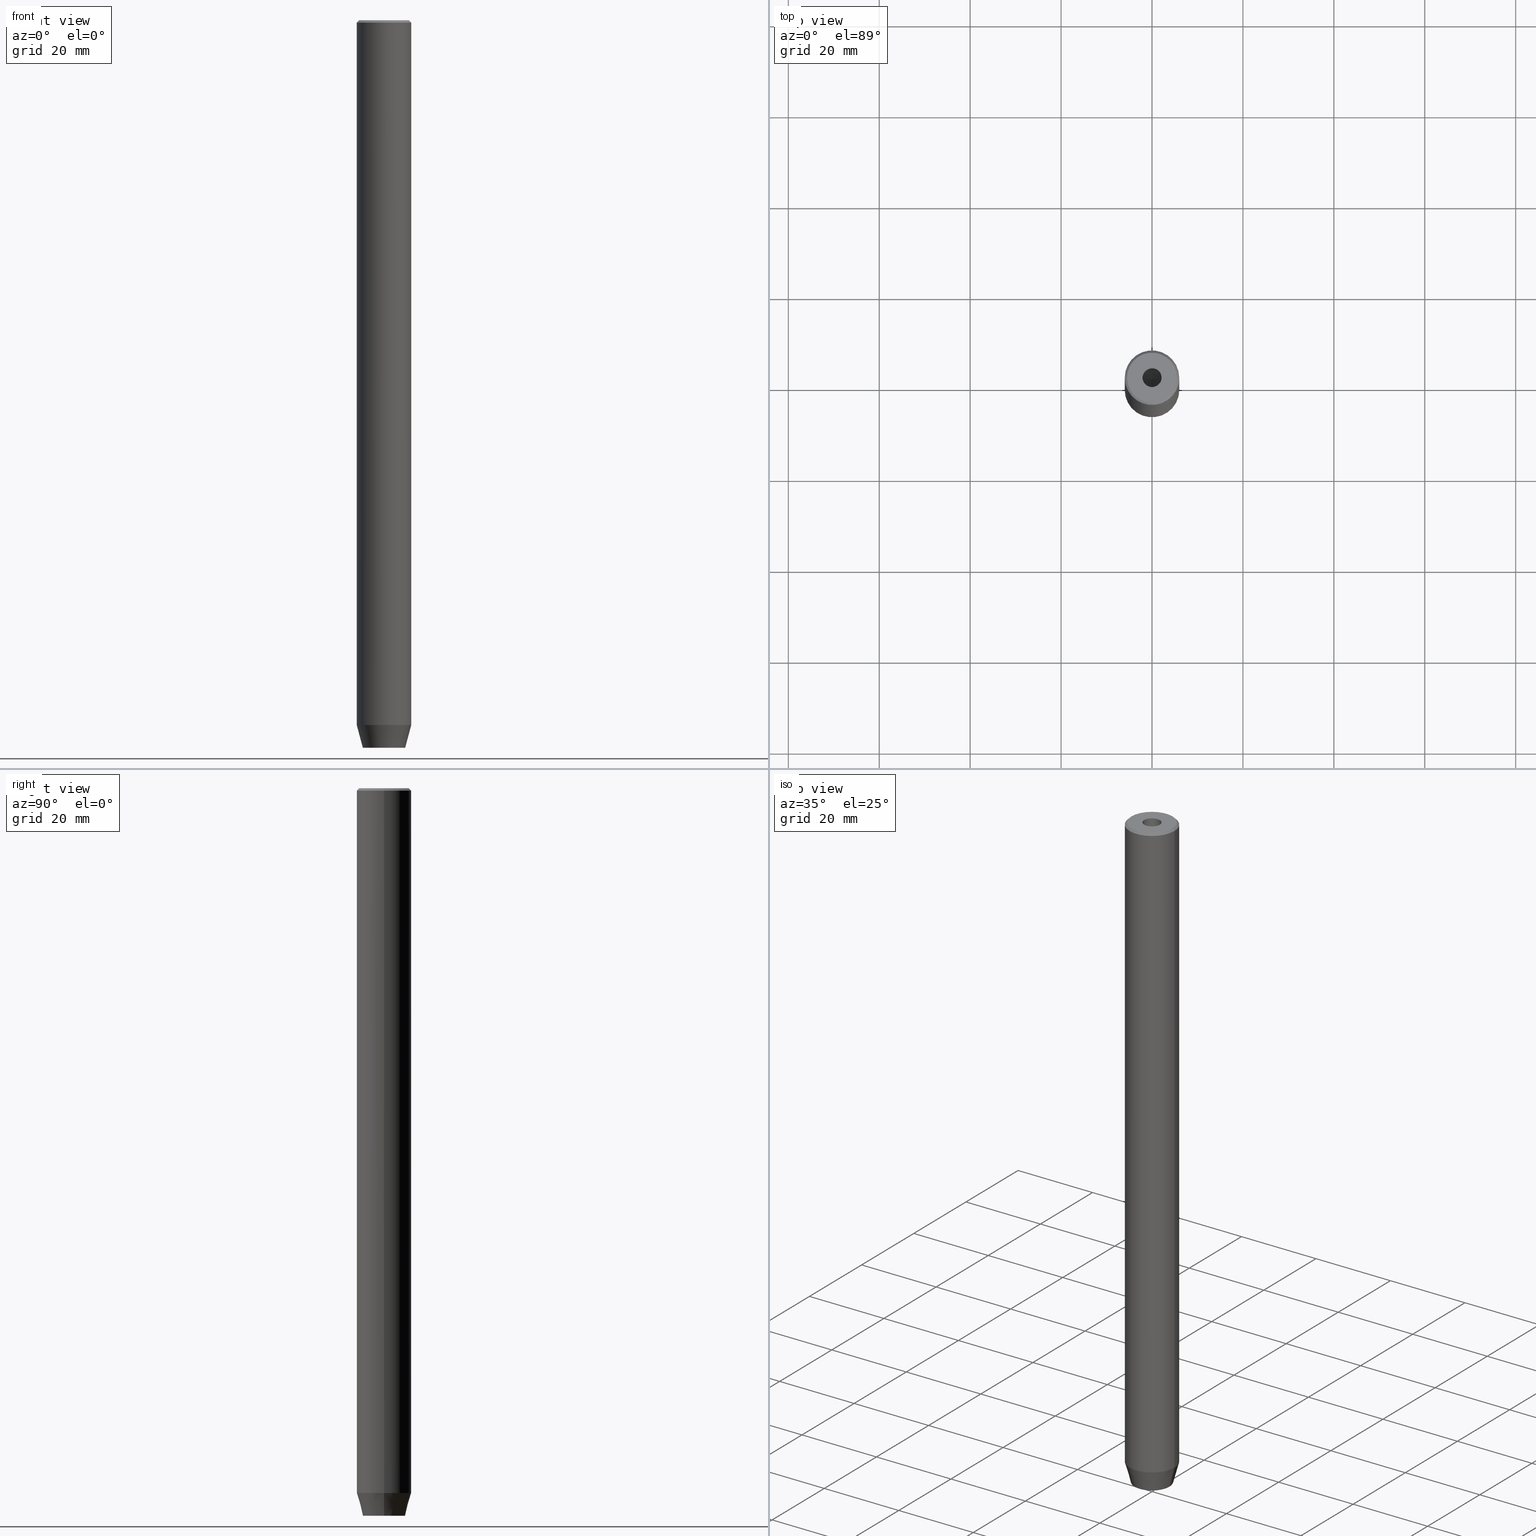
[diagram: canonical four-view strip — front | top / right | iso, engineering-drawing reading convention]
A machine part, canonical four-view strip (front | top / right | iso — engineering-drawing reading convention). The complete STEP part file that produces these views, byte-faithful:
ISO-10303-21;
HEADER;
FILE_DESCRIPTION (( 'STEP AP203' ),
    '1' );
FILE_NAME ('f356.STEP',
    '2024-01-02T21:54:48',
    ( '' ),
    ( '' ),
    'SwSTEP 2.0',
    'SolidWorks 2019',
    '' );
FILE_SCHEMA (( 'CONFIG_CONTROL_DESIGN' ));
ENDSEC;

DATA;
#1 = DIRECTION ( 'NONE',  ( 1.000000000000000000, 0.000000000000000000, 0.000000000000000000 ) ) ;
#2 = AXIS2_PLACEMENT_3D ( 'NONE', #379, #235, #511 ) ;
#3 = ADVANCED_FACE ( 'NONE', ( #279 ), #125, .F. ) ;
#4 = PLANE ( 'NONE',  #210 ) ;
#5 = LINE ( 'NONE', #376, #346 ) ;
#6 = DIRECTION ( 'NONE',  ( -0.000000000000000000, -0.000000000000000000, 1.000000000000000000 ) ) ;
#7 = CARTESIAN_POINT ( 'NONE',  ( 2.500000000000000000, -1.443375672974064106, -157.2000000000000171 ) ) ;
#8 = VERTEX_POINT ( 'NONE', #580 ) ;
#9 = VECTOR ( 'NONE', #508, 1000.000000000000000 ) ;
#10 = CARTESIAN_POINT ( 'NONE',  ( -6.000000000000000000, 7.347880794884119736E-16, -0.4999999999999891753 ) ) ;
#11 = FACE_OUTER_BOUND ( 'NONE', #298, .T. ) ;
#12 = VECTOR ( 'NONE', #16, 1000.000000000000000 ) ;
#13 = CIRCLE ( 'NONE', #428, 2.099999999999998757 ) ;
#14 = DIRECTION ( 'NONE',  ( -1.000000000000000000, 0.000000000000000000, -0.000000000000000000 ) ) ;
#15 = DATE_TIME_ROLE ( 'creation_date' ) ;
#16 = DIRECTION ( 'NONE',  ( 0.000000000000000000, -1.000000000000000000, 0.000000000000000000 ) ) ;
#17 = ORIENTED_EDGE ( 'NONE', *, *, #548, .T. ) ;
#18 = EDGE_CURVE ( 'NONE', #225, #523, #44, .T. ) ;
#19 = CARTESIAN_POINT ( 'NONE',  ( 0.000000000000000000, -2.886751345948128211, -157.2000000000000171 ) ) ;
#20 = AXIS2_PLACEMENT_3D ( 'NONE', #284, #141, #430 ) ;
#21 = ORIENTED_EDGE ( 'NONE', *, *, #51, .F. ) ;
#22 = VECTOR ( 'NONE', #171, 1000.000000000000000 ) ;
#23 = VECTOR ( 'NONE', #130, 1000.000000000000000 ) ;
#24 = LOCAL_TIME ( 22, 54, 48.00000000000000000, #444 ) ;
#25 = EDGE_CURVE ( 'NONE', #160, #204, #320, .T. ) ;
#26 = EDGE_LOOP ( 'NONE', ( #254, #87 ) ) ;
#27 = VERTEX_POINT ( 'NONE', #501 ) ;
#28 = DATE_TIME_ROLE ( 'classification_date' ) ;
#29 = CARTESIAN_POINT ( 'NONE',  ( -2.099999999999997868, 2.571758278209438999E-16, 0.000000000000000000 ) ) ;
#30 = EDGE_LOOP ( 'NONE', ( #105, #21, #181, #576 ) ) ;
#31 = DIRECTION ( 'NONE',  ( -0.4999999999999998890, -0.8660254037844387076, 0.000000000000000000 ) ) ;
#32 = CC_DESIGN_APPROVAL ( #326, ( #283 ) ) ;
#33 = EDGE_CURVE ( 'NONE', #194, #45, #230, .T. ) ;
#34 = CARTESIAN_POINT ( 'NONE',  ( 0.000000000000000000, -2.886751345948128211, -157.2000000000000171 ) ) ;
#35 = ORIENTED_EDGE ( 'NONE', *, *, #432, .T. ) ;
#36 = CARTESIAN_POINT ( 'NONE',  ( 0.000000000000000000, 0.000000000000000000, 0.000000000000000000 ) ) ;
#37 = CARTESIAN_POINT ( 'NONE',  ( -1.084202172485504434E-16, 2.886751345948129543, -157.2000000000000171 ) ) ;
#38 = APPROVAL_DATE_TIME ( #577, #306 ) ;
#39 = ORIENTED_EDGE ( 'NONE', *, *, #111, .T. ) ;
#40 = CARTESIAN_POINT ( 'NONE',  ( 6.000000000000000000, 0.000000000000000000, -154.9999999999999716 ) ) ;
#41 = ADVANCED_FACE ( 'NONE', ( #358 ), #74, .T. ) ;
#42 = AXIS2_PLACEMENT_3D ( 'NONE', #460, #370, #59 ) ;
#43 = LINE ( 'NONE', #224, #353 ) ;
#44 = LINE ( 'NONE', #37, #288 ) ;
#45 = VERTEX_POINT ( 'NONE', #311 ) ;
#46 = UNCERTAINTY_MEASURE_WITH_UNIT (LENGTH_MEASURE( 1.000000000000000082E-05 ), #101, 'distance_accuracy_value', 'NONE');
#47 = DIRECTION ( 'NONE',  ( 0.5000000000000001110, 0.8660254037844385966, -0.000000000000000000 ) ) ;
#48 = DIRECTION ( 'NONE',  ( 0.000000000000000000, 1.000000000000000000, 0.000000000000000000 ) ) ;
#49 = VECTOR ( 'NONE', #455, 1000.000000000000000 ) ;
#50 = ORIENTED_EDGE ( 'NONE', *, *, #363, .T. ) ;
#51 = EDGE_CURVE ( 'NONE', #160, #302, #458, .T. ) ;
#52 = CARTESIAN_POINT ( 'NONE',  ( 0.000000000000000000, 0.000000000000000000, -15.00000000000000000 ) ) ;
#53 = ORIENTED_EDGE ( 'NONE', *, *, #500, .F. ) ;
#54 = APPROVAL_PERSON_ORGANIZATION ( #505, #565, #219 ) ;
#55 = DIRECTION ( 'NONE',  ( -0.000000000000000000, -0.000000000000000000, 1.000000000000000000 ) ) ;
#56 = FACE_OUTER_BOUND ( 'NONE', #82, .T. ) ;
#57 = PRODUCT ( 'f356', 'f356', '', ( #333 ) ) ;
#58 = CARTESIAN_POINT ( 'NONE',  ( 0.000000000000000000, 0.000000000000000000, -15.00000000000000000 ) ) ;
#59 = DIRECTION ( 'NONE',  ( 1.000000000000000000, 0.000000000000000000, 0.000000000000000000 ) ) ;
#60 = CARTESIAN_POINT ( 'NONE',  ( -1.084202172485504434E-16, 2.886751345948129543, -160.0000000000000000 ) ) ;
#61 = DIRECTION ( 'NONE',  ( 1.000000000000000000, 0.000000000000000000, 0.000000000000000000 ) ) ;
#62 = EDGE_CURVE ( 'NONE', #542, #523, #276, .T. ) ;
#63 = AXIS2_PLACEMENT_3D ( 'NONE', #84, #452, #578 ) ;
#64 = DIRECTION ( 'NONE',  ( 0.5000000000000000000, -0.8660254037844387076, 0.000000000000000000 ) ) ;
#65 = LINE ( 'NONE', #246, #436 ) ;
#66 = EDGE_CURVE ( 'NONE', #408, #446, #410, .T. ) ;
#67 = PERSON_AND_ORGANIZATION ( #581, #569 ) ;
#68 = VECTOR ( 'NONE', #395, 1000.000000000000114 ) ;
#69 = ORIENTED_EDGE ( 'NONE', *, *, #214, .F. ) ;
#70 = APPROVAL_STATUS ( 'not_yet_approved' ) ;
#71 = CARTESIAN_POINT ( 'NONE',  ( 2.500000000000000000, 1.443375672974064328, -157.2000000000000171 ) ) ;
#72 = ORIENTED_EDGE ( 'NONE', *, *, #372, .F. ) ;
#73 = CARTESIAN_POINT ( 'NONE',  ( -5.500000000000017764, 0.000000000000000000, 0.000000000000000000 ) ) ;
#74 = CONICAL_SURFACE ( 'NONE', #412, 5.500000000000017764, 0.7853981633974415066 ) ;
#75 = ORIENTED_EDGE ( 'NONE', *, *, #138, .T. ) ;
#76 = EDGE_CURVE ( 'NONE', #204, #542, #586, .T. ) ;
#77 = LINE ( 'NONE', #34, #250 ) ;
#78 = ORIENTED_EDGE ( 'NONE', *, *, #448, .T. ) ;
#79 = PERSON_AND_ORGANIZATION ( #581, #569 ) ;
#80 = DIRECTION ( 'NONE',  ( -0.000000000000000000, -0.000000000000000000, 1.000000000000000000 ) ) ;
#81 = FACE_BOUND ( 'NONE', #26, .T. ) ;
#82 = EDGE_LOOP ( 'NONE', ( #451, #390, #290, #495 ) ) ;
#83 = PERSON_AND_ORGANIZATION_ROLE ( 'design_supplier' ) ;
#84 = CARTESIAN_POINT ( 'NONE',  ( 0.000000000000000000, 0.000000000000000000, -154.9999999999999716 ) ) ;
#85 = EDGE_CURVE ( 'NONE', #305, #587, #43, .T. ) ;
#86 = DIRECTION ( 'NONE',  ( 0.000000000000000000, 0.000000000000000000, -1.000000000000000000 ) ) ;
#87 = ORIENTED_EDGE ( 'NONE', *, *, #251, .F. ) ;
#88 = LINE ( 'NONE', #29, #519 ) ;
#89 = VECTOR ( 'NONE', #334, 1000.000000000000000 ) ;
#90 = DIRECTION ( 'NONE',  ( 0.000000000000000000, 0.000000000000000000, -1.000000000000000000 ) ) ;
#91 = VERTEX_POINT ( 'NONE', #135 ) ;
#92 = EDGE_CURVE ( 'NONE', #523, #456, #139, .T. ) ;
#93 = CARTESIAN_POINT ( 'NONE',  ( 2.099999999999998757, 0.000000000000000000, -1.990051048614449116E-16 ) ) ;
#94 = CIRCLE ( 'NONE', #433, 2.099999999999996980 ) ;
#95 = VERTEX_POINT ( 'NONE', #93 ) ;
#96 = DIRECTION ( 'NONE',  ( -0.000000000000000000, -0.000000000000000000, 1.000000000000000000 ) ) ;
#97 = VECTOR ( 'NONE', #391, 999.9999999999998863 ) ;
#98 = FACE_OUTER_BOUND ( 'NONE', #128, .T. ) ;
#99 = CARTESIAN_POINT ( 'NONE',  ( 0.000000000000000000, 0.000000000000000000, -154.9999999999999716 ) ) ;
#100 = VERTEX_POINT ( 'NONE', #584 ) ;
#101 =( LENGTH_UNIT ( ) NAMED_UNIT ( * ) SI_UNIT ( .MILLI., .METRE. ) );
#102 = DIRECTION ( 'NONE',  ( -0.000000000000000000, -0.000000000000000000, 1.000000000000000000 ) ) ;
#103 = EDGE_CURVE ( 'NONE', #566, #182, #94, .T. ) ;
#104 = FACE_BOUND ( 'NONE', #525, .T. ) ;
#105 = ORIENTED_EDGE ( 'NONE', *, *, #293, .T. ) ;
#106 = VECTOR ( 'NONE', #403, 1000.000000000000000 ) ;
#107 = PLANE ( 'NONE',  #417 ) ;
#108 = CARTESIAN_POINT ( 'NONE',  ( -2.500000000000000444, 0.000000000000000000, -160.0000000000000000 ) ) ;
#109 = VERTEX_POINT ( 'NONE', #315 ) ;
#110 = CIRCLE ( 'NONE', #2, 4.660254037844373975 ) ;
#111 = EDGE_CURVE ( 'NONE', #446, #91, #170, .T. ) ;
#112 = ORIENTED_EDGE ( 'NONE', *, *, #25, .F. ) ;
#113 = PERSON_AND_ORGANIZATION ( #581, #569 ) ;
#114 = AXIS2_PLACEMENT_3D ( 'NONE', #420, #516, #198 ) ;
#115 = FACE_OUTER_BOUND ( 'NONE', #316, .T. ) ;
#116 = ORIENTED_EDGE ( 'NONE', *, *, #158, .F. ) ;
#117 = LINE ( 'NONE', #256, #23 ) ;
#118 = MANIFOLD_SOLID_BREP ( 'Vrt�k z�vitn�ku pro M5 z�vit1', #207 ) ;
#119 = EDGE_CURVE ( 'NONE', #182, #566, #142, .T. ) ;
#120 = EDGE_LOOP ( 'NONE', ( #249, #539, #50, #53 ) ) ;
#121 = CARTESIAN_POINT ( 'NONE',  ( -4.660254037844373975, 6.527522992771880386E-16, -160.0000000000000000 ) ) ;
#122 = ORIENTED_EDGE ( 'NONE', *, *, #350, .F. ) ;
#123 = DIRECTION ( 'NONE',  ( 0.2588190451025214056, 0.000000000000000000, 0.9659258262890680902 ) ) ;
#124 = CARTESIAN_POINT ( 'NONE',  ( 2.099999999999996980, 0.000000000000000000, -15.00000000000000000 ) ) ;
#125 = CYLINDRICAL_SURFACE ( 'NONE', #202, 2.099999999999997868 ) ;
#126 = ADVANCED_FACE ( 'NONE', ( #104, #467 ), #331, .T. ) ;
#127 = DIRECTION ( 'NONE',  ( 1.000000000000000000, 0.000000000000000000, 0.000000000000000000 ) ) ;
#128 = EDGE_LOOP ( 'NONE', ( #504, #247 ) ) ;
#129 = CC_DESIGN_DATE_AND_TIME_ASSIGNMENT ( #216, #28, ( #406 ) ) ;
#130 = DIRECTION ( 'NONE',  ( 0.8571673007021113344, 0.000000000000000000, 0.5150380749100558209 ) ) ;
#131 = CC_DESIGN_DATE_AND_TIME_ASSIGNMENT ( #541, #15, ( #297 ) ) ;
#132 = AXIS2_PLACEMENT_3D ( 'NONE', #58, #96, #299 ) ;
#133 = DIRECTION ( 'NONE',  ( 0.8660254037844385966, 0.5000000000000001110, 0.000000000000000000 ) ) ;
#134 = AXIS2_PLACEMENT_3D ( 'NONE', #419, #6, #150 ) ;
#135 = CARTESIAN_POINT ( 'NONE',  ( 6.000000000000000000, 0.000000000000000000, -0.4999999999999891753 ) ) ;
#136 = VERTEX_POINT ( 'NONE', #19 ) ;
#137 = DIRECTION ( 'NONE',  ( -0.000000000000000000, -0.000000000000000000, 1.000000000000000000 ) ) ;
#138 = EDGE_CURVE ( 'NONE', #302, #542, #238, .T. ) ;
#139 = LINE ( 'NONE', #503, #506 ) ;
#140 = CARTESIAN_POINT ( 'NONE',  ( 0.000000000000000000, 0.000000000000000000, 0.000000000000000000 ) ) ;
#141 = DIRECTION ( 'NONE',  ( -0.000000000000000000, -0.000000000000000000, 1.000000000000000000 ) ) ;
#142 = CIRCLE ( 'NONE', #132, 2.099999999999996980 ) ;
#143 = ORIENTED_EDGE ( 'NONE', *, *, #214, .T. ) ;
#144 = APPROVAL_STATUS ( 'not_yet_approved' ) ;
#145 = FACE_OUTER_BOUND ( 'NONE', #556, .T. ) ;
#146 = CARTESIAN_POINT ( 'NONE',  ( 5.500000000000017764, 6.735557395310464703E-16, 0.000000000000000000 ) ) ;
#147 = AXIS2_PLACEMENT_3D ( 'NONE', #99, #285, #470 ) ;
#148 = APPROVAL_PERSON_ORGANIZATION ( #113, #306, #206 ) ;
#149 = ADVANCED_FACE ( 'NONE', ( #115 ), #515, .T. ) ;
#150 = DIRECTION ( 'NONE',  ( 1.000000000000000000, 0.000000000000000000, 0.000000000000000000 ) ) ;
#151 = CARTESIAN_POINT ( 'NONE',  ( -1.084202172485504434E-16, 2.886751345948129543, -157.2000000000000171 ) ) ;
#152 = DIRECTION ( 'NONE',  ( -0.000000000000000000, -0.000000000000000000, 1.000000000000000000 ) ) ;
#153 = DIRECTION ( 'NONE',  ( -0.000000000000000000, -0.000000000000000000, -1.000000000000000000 ) ) ;
#154 = ORIENTED_EDGE ( 'NONE', *, *, #548, .F. ) ;
#155 = VECTOR ( 'NONE', #233, 1000.000000000000000 ) ;
#156 = AXIS2_PLACEMENT_3D ( 'NONE', #159, #292, #383 ) ;
#157 = CARTESIAN_POINT ( 'NONE',  ( -1.250000000000000444, 2.165063509461097269, -157.2000000000000171 ) ) ;
#158 = EDGE_CURVE ( 'NONE', #8, #91, #325, .T. ) ;
#159 = CARTESIAN_POINT ( 'NONE',  ( -2.500000000000000444, 0.000000000000000000, -157.2000000000000171 ) ) ;
#160 = VERTEX_POINT ( 'NONE', #482 ) ;
#161 = AXIS2_PLACEMENT_3D ( 'NONE', #462, #55, #413 ) ;
#162 = ORIENTED_EDGE ( 'NONE', *, *, #85, .F. ) ;
#163 = ORIENTED_EDGE ( 'NONE', *, *, #103, .T. ) ;
#164 = ORIENTED_EDGE ( 'NONE', *, *, #119, .F. ) ;
#165 = ADVANCED_FACE ( 'NONE', ( #11 ), #244, .F. ) ;
#166 = DIRECTION ( 'NONE',  ( -0.7071067811865426878, 0.000000000000000000, -0.7071067811865524577 ) ) ;
#167 = ORIENTED_EDGE ( 'NONE', *, *, #193, .T. ) ;
#168 = CARTESIAN_POINT ( 'NONE',  ( 2.500000000000000000, -1.443375672974064106, -160.0000000000000000 ) ) ;
#169 = ORIENTED_EDGE ( 'NONE', *, *, #227, .F. ) ;
#170 = CIRCLE ( 'NONE', #324, 6.000000000000000000 ) ;
#171 = DIRECTION ( 'NONE',  ( 0.8660254037844385966, -0.5000000000000001110, 0.000000000000000000 ) ) ;
#172 = APPLICATION_PROTOCOL_DEFINITION ( 'international standard', 'config_control_design', 1994, #469 ) ;
#173 = EDGE_CURVE ( 'NONE', #45, #305, #514, .T. ) ;
#174 = ORIENTED_EDGE ( 'NONE', *, *, #432, .F. ) ;
#175 = AXIS2_PLACEMENT_3D ( 'NONE', #397, #212, #218 ) ;
#176 = DIRECTION ( 'NONE',  ( -0.000000000000000000, -0.000000000000000000, 1.000000000000000000 ) ) ;
#177 = ORIENTED_EDGE ( 'NONE', *, *, #92, .F. ) ;
#178 = CALENDAR_DATE ( 2024, 2, 1 ) ;
#179 = CARTESIAN_POINT ( 'NONE',  ( -6.000000000000000000, 7.347880794884119736E-16, -154.9999999999999716 ) ) ;
#180 = DIRECTION ( 'NONE',  ( -0.000000000000000000, -0.000000000000000000, 1.000000000000000000 ) ) ;
#181 = ORIENTED_EDGE ( 'NONE', *, *, #193, .F. ) ;
#182 = VERTEX_POINT ( 'NONE', #340 ) ;
#183 = EDGE_LOOP ( 'NONE', ( #69, #351, #189, #169 ) ) ;
#184 = DIRECTION ( 'NONE',  ( -0.2588190451025214056, 3.169619151431772953E-17, 0.9659258262890680902 ) ) ;
#185 = CARTESIAN_POINT ( 'NONE',  ( 0.000000000000000000, 0.000000000000000000, -160.0000000000000000 ) ) ;
#186 = ADVANCED_FACE ( 'NONE', ( #473 ), #4, .F. ) ;
#187 = VECTOR ( 'NONE', #123, 1000.000000000000000 ) ;
#188 = DIRECTION ( 'NONE',  ( 0.8660254037844385966, -0.5000000000000001110, 0.000000000000000000 ) ) ;
#189 = ORIENTED_EDGE ( 'NONE', *, *, #394, .T. ) ;
#190 = LINE ( 'NONE', #464, #341 ) ;
#191 = ORIENTED_EDGE ( 'NONE', *, *, #62, .T. ) ;
#192 = CARTESIAN_POINT ( 'NONE',  ( 2.500000000000000000, 0.000000000000000000, -157.2000000000000171 ) ) ;
#193 = EDGE_CURVE ( 'NONE', #136, #160, #190, .T. ) ;
#194 = VERTEX_POINT ( 'NONE', #71 ) ;
#195 = CARTESIAN_POINT ( 'NONE',  ( 0.000000000000000000, 0.000000000000000000, 0.000000000000000000 ) ) ;
#196 = DIRECTION ( 'NONE',  ( 1.000000000000000000, 0.000000000000000000, 0.000000000000000000 ) ) ;
#197 = DIRECTION ( 'NONE',  ( -1.000000000000000000, 0.000000000000000000, -0.000000000000000000 ) ) ;
#198 = DIRECTION ( 'NONE',  ( -0.8660254037844385966, -0.5000000000000001110, 0.000000000000000000 ) ) ;
#199 = FACE_OUTER_BOUND ( 'NONE', #203, .T. ) ;
#200 = ADVANCED_FACE ( 'NONE', ( #560 ), #522, .F. ) ;
#201 = DIRECTION ( 'NONE',  ( -0.8660254037844387076, 0.4999999999999998890, 0.000000000000000000 ) ) ;
#202 = AXIS2_PLACEMENT_3D ( 'NONE', #449, #308, #1 ) ;
#203 = EDGE_LOOP ( 'NONE', ( #17, #389, #443, #484, #167, #486 ) ) ;
#204 = VERTEX_POINT ( 'NONE', #374 ) ;
#205 = ADVANCED_FACE ( 'NONE', ( #56 ), #237, .F. ) ;
#206 = APPROVAL_ROLE ( '' ) ;
#207 = CLOSED_SHELL ( 'NONE', ( #465, #521, #41, #149, #425, #126, #585, #343, #236, #441, #200, #165, #382, #186, #205, #459, #527, #338, #3 ) ) ;
#208 = CARTESIAN_POINT ( 'NONE',  ( 0.000000000000000000, 0.000000000000000000, 0.000000000000000000 ) ) ;
#209 = ORIENTED_EDGE ( 'NONE', *, *, #119, .T. ) ;
#210 = AXIS2_PLACEMENT_3D ( 'NONE', #339, #64, #381 ) ;
#211 = LOCAL_TIME ( 22, 54, 48.00000000000000000, #399 ) ;
#212 = DIRECTION ( 'NONE',  ( -0.000000000000000000, -0.000000000000000000, 1.000000000000000000 ) ) ;
#213 = LINE ( 'NONE', #356, #68 ) ;
#214 = EDGE_CURVE ( 'NONE', #27, #91, #553, .T. ) ;
#215 = ORIENTED_EDGE ( 'NONE', *, *, #448, .F. ) ;
#216 = DATE_AND_TIME ( #438, #24 ) ;
#217 = DESIGN_CONTEXT ( 'detailed design', #313, 'design' ) ;
#218 = DIRECTION ( 'NONE',  ( 1.000000000000000000, 0.000000000000000000, 0.000000000000000000 ) ) ;
#219 = APPROVAL_ROLE ( '' ) ;
#220 = CC_DESIGN_PERSON_AND_ORGANIZATION_ASSIGNMENT ( #280, #328, ( #297 ) ) ;
#221 = CARTESIAN_POINT ( 'NONE',  ( 2.500000000000000000, 0.000000000000000000, -157.2000000000000171 ) ) ;
#222 = FACE_OUTER_BOUND ( 'NONE', #332, .T. ) ;
#223 = CC_DESIGN_APPROVAL ( #306, ( #406 ) ) ;
#224 = CARTESIAN_POINT ( 'NONE',  ( 1.249999999999999778, -2.165063509461096380, -160.0000000000000000 ) ) ;
#225 = VERTEX_POINT ( 'NONE', #151 ) ;
#226 = CARTESIAN_POINT ( 'NONE',  ( -2.500000000000000444, -1.443375672974064328, -157.2000000000000171 ) ) ;
#227 = EDGE_CURVE ( 'NONE', #91, #446, #386, .T. ) ;
#228 = ORIENTED_EDGE ( 'NONE', *, *, #321, .F. ) ;
#229 = CYLINDRICAL_SURFACE ( 'NONE', #161, 2.099999999999997868 ) ;
#230 = LINE ( 'NONE', #221, #106 ) ;
#231 = AXIS2_PLACEMENT_3D ( 'NONE', #192, #377, #549 ) ;
#232 = CIRCLE ( 'NONE', #134, 6.000000000000000000 ) ;
#233 = DIRECTION ( 'NONE',  ( -0.000000000000000000, -0.000000000000000000, -1.000000000000000000 ) ) ;
#234 = APPROVAL_DATE_TIME ( #426, #565 ) ;
#235 = DIRECTION ( 'NONE',  ( -0.000000000000000000, -0.000000000000000000, 1.000000000000000000 ) ) ;
#236 = ADVANCED_FACE ( 'NONE', ( #512 ), #270, .T. ) ;
#237 = PLANE ( 'NONE',  #231 ) ;
#238 = LINE ( 'NONE', #108, #9 ) ;
#239 = COORDINATED_UNIVERSAL_TIME_OFFSET ( 1, 0, .AHEAD. ) ;
#240 = CARTESIAN_POINT ( 'NONE',  ( 0.000000000000000000, 0.000000000000000000, -157.2000000000000171 ) ) ;
#241 = LINE ( 'NONE', #429, #12 ) ;
#242 = AXIS2_PLACEMENT_3D ( 'NONE', #195, #415, #378 ) ;
#243 = APPROVAL_DATE_TIME ( #296, #326 ) ;
#244 = PLANE ( 'NONE',  #156 ) ;
#245 = EDGE_CURVE ( 'NONE', #456, #305, #241, .T. ) ;
#246 = CARTESIAN_POINT ( 'NONE',  ( -6.000000000000000000, 7.347880794884119736E-16, -154.9999999999999716 ) ) ;
#247 = ORIENTED_EDGE ( 'NONE', *, *, #272, .T. ) ;
#248 = VECTOR ( 'NONE', #555, 1000.000000000000000 ) ;
#249 = ORIENTED_EDGE ( 'NONE', *, *, #559, .F. ) ;
#250 = VECTOR ( 'NONE', #268, 1000.000000000000000 ) ;
#251 = EDGE_CURVE ( 'NONE', #398, #95, #281, .T. ) ;
#252 = ORIENTED_EDGE ( 'NONE', *, *, #76, .F. ) ;
#253 = DIRECTION ( 'NONE',  ( 0.000000000000000000, 0.000000000000000000, -1.000000000000000000 ) ) ;
#254 = ORIENTED_EDGE ( 'NONE', *, *, #540, .F. ) ;
#255 = ADVANCED_BREP_SHAPE_REPRESENTATION ( 'f356', ( #118, #242 ), #498 ) ;
#256 = CARTESIAN_POINT ( 'NONE',  ( 2.099999999999996980, 0.000000000000000000, -15.00000000000000000 ) ) ;
#257 = ORIENTED_EDGE ( 'NONE', *, *, #314, .T. ) ;
#258 = PERSON_AND_ORGANIZATION_ROLE ( 'classification_officer' ) ;
#259 = EDGE_CURVE ( 'NONE', #225, #194, #301, .T. ) ;
#260 = AXIS2_PLACEMENT_3D ( 'NONE', #307, #31, #447 ) ;
#261 = DIRECTION ( 'NONE',  ( -0.000000000000000000, -0.000000000000000000, 1.000000000000000000 ) ) ;
#262 = ORIENTED_EDGE ( 'NONE', *, *, #483, .F. ) ;
#263 = LINE ( 'NONE', #40, #187 ) ;
#264 =( NAMED_UNIT ( * ) PLANE_ANGLE_UNIT ( ) SI_UNIT ( $, .RADIAN. ) );
#265 = ORIENTED_EDGE ( 'NONE', *, *, #51, .T. ) ;
#266 = CALENDAR_DATE ( 2024, 2, 1 ) ;
#267 = ORIENTED_EDGE ( 'NONE', *, *, #173, .T. ) ;
#268 = DIRECTION ( 'NONE',  ( -0.000000000000000000, -0.000000000000000000, -1.000000000000000000 ) ) ;
#269 = CARTESIAN_POINT ( 'NONE',  ( -2.500000000000000444, 1.443375672974064772, -157.2000000000000171 ) ) ;
#270 = CONICAL_SURFACE ( 'NONE', #147, 6.000000000000000000, 0.2617993877991501295 ) ;
#271 = AXIS2_PLACEMENT_3D ( 'NONE', #185, #137, #196 ) ;
#272 = EDGE_CURVE ( 'NONE', #27, #100, #359, .T. ) ;
#273 = ORIENTED_EDGE ( 'NONE', *, *, #85, .T. ) ;
#274 = ORIENTED_EDGE ( 'NONE', *, *, #272, .F. ) ;
#275 = CARTESIAN_POINT ( 'NONE',  ( -2.099999999999996980, 2.571758278209438013E-16, -15.00000000000000000 ) ) ;
#276 = LINE ( 'NONE', #497, #303 ) ;
#277 = ORIENTED_EDGE ( 'NONE', *, *, #483, .T. ) ;
#278 = DIRECTION ( 'NONE',  ( -0.8660254037844385966, 0.5000000000000001110, 0.000000000000000000 ) ) ;
#279 = FACE_OUTER_BOUND ( 'NONE', #388, .T. ) ;
#280 = PERSON_AND_ORGANIZATION ( #581, #569 ) ;
#281 = CIRCLE ( 'NONE', #175, 2.099999999999998757 ) ;
#282 = CIRCLE ( 'NONE', #271, 4.660254037844373975 ) ;
#283 = PRODUCT_DEFINITION_FORMATION_WITH_SPECIFIED_SOURCE ( 'LIBOVOLN�', '', #57, .NOT_KNOWN. ) ;
#284 = CARTESIAN_POINT ( 'NONE',  ( 0.000000000000000000, 0.000000000000000000, -154.9999999999999716 ) ) ;
#285 = DIRECTION ( 'NONE',  ( -0.000000000000000000, -0.000000000000000000, 1.000000000000000000 ) ) ;
#286 = APPLICATION_PROTOCOL_DEFINITION ( 'international standard', 'config_control_design', 1994, #313 ) ;
#287 = CARTESIAN_POINT ( 'NONE',  ( 0.000000000000000000, 0.000000000000000000, -0.4999999999999891753 ) ) ;
#288 = VECTOR ( 'NONE', #492, 1000.000000000000000 ) ;
#289 = VECTOR ( 'NONE', #424, 1000.000000000000000 ) ;
#290 = ORIENTED_EDGE ( 'NONE', *, *, #33, .F. ) ;
#291 = CARTESIAN_POINT ( 'NONE',  ( 0.000000000000000000, 0.000000000000000000, -15.00000000000000000 ) ) ;
#292 = DIRECTION ( 'NONE',  ( -1.000000000000000000, 0.000000000000000000, 0.000000000000000000 ) ) ;
#293 = EDGE_CURVE ( 'NONE', #587, #302, #213, .T. ) ;
#294 = AXIS2_PLACEMENT_3D ( 'NONE', #538, #312, #496 ) ;
#295 = FACE_OUTER_BOUND ( 'NONE', #488, .T. ) ;
#296 = DATE_AND_TIME ( #178, #211 ) ;
#297 = PRODUCT_DEFINITION ( 'NEZN�M�', '', #283, #217 ) ;
#298 = EDGE_LOOP ( 'NONE', ( #75, #252, #112, #265 ) ) ;
#299 = DIRECTION ( 'NONE',  ( 1.000000000000000000, 0.000000000000000000, 0.000000000000000000 ) ) ;
#300 = ORIENTED_EDGE ( 'NONE', *, *, #158, .T. ) ;
#301 = LINE ( 'NONE', #400, #22 ) ;
#302 = VERTEX_POINT ( 'NONE', #571 ) ;
#303 = VECTOR ( 'NONE', #133, 1000.000000000000000 ) ;
#304 = FACE_OUTER_BOUND ( 'NONE', #30, .T. ) ;
#305 = VERTEX_POINT ( 'NONE', #168 ) ;
#306 = APPROVAL ( #529, 'NEUR�EN�' ) ;
#307 = CARTESIAN_POINT ( 'NONE',  ( -1.249999999999999556, -2.165063509461096825, -157.2000000000000171 ) ) ;
#308 = DIRECTION ( 'NONE',  ( -0.000000000000000000, -0.000000000000000000, 1.000000000000000000 ) ) ;
#309 = APPROVAL_ROLE ( '' ) ;
#310 = CARTESIAN_POINT ( 'NONE',  ( 0.000000000000000000, 0.000000000000000000, -15.00000000000000000 ) ) ;
#311 = CARTESIAN_POINT ( 'NONE',  ( 2.500000000000000000, -1.443375672974064106, -157.2000000000000171 ) ) ;
#312 = DIRECTION ( 'NONE',  ( -0.000000000000000000, -0.000000000000000000, 1.000000000000000000 ) ) ;
#313 = APPLICATION_CONTEXT ( 'configuration controlled 3d designs of mechanical parts and assemblies' ) ;
#314 = EDGE_CURVE ( 'NONE', #566, #95, #442, .T. ) ;
#315 = CARTESIAN_POINT ( 'NONE',  ( 4.660254037844373975, 0.000000000000000000, -160.0000000000000000 ) ) ;
#316 = EDGE_LOOP ( 'NONE', ( #277, #478, #122, #336 ) ) ;
#317 = AXIS2_PLACEMENT_3D ( 'NONE', #208, #80, #487 ) ;
#318 = APPROVAL_PERSON_ORGANIZATION ( #518, #326, #309 ) ;
#319 = DIRECTION ( 'NONE',  ( 1.000000000000000000, 0.000000000000000000, 0.000000000000000000 ) ) ;
#320 = LINE ( 'NONE', #414, #366 ) ;
#321 = EDGE_CURVE ( 'NONE', #45, #136, #445, .T. ) ;
#322 = ORIENTED_EDGE ( 'NONE', *, *, #385, .F. ) ;
#323 = PERSON_AND_ORGANIZATION_ROLE ( 'design_owner' ) ;
#324 = AXIS2_PLACEMENT_3D ( 'NONE', #418, #90, #319 ) ;
#325 = LINE ( 'NONE', #335, #289 ) ;
#326 = APPROVAL ( #70, 'NEUR�EN�' ) ;
#327 = ORIENTED_EDGE ( 'NONE', *, *, #293, .F. ) ;
#328 = PERSON_AND_ORGANIZATION_ROLE ( 'creator' ) ;
#329 = CARTESIAN_POINT ( 'NONE',  ( 2.500000000000000000, 1.443375672974064328, -160.0000000000000000 ) ) ;
#330 = LOCAL_TIME ( 22, 54, 48.00000000000000000, #239 ) ;
#331 = PLANE ( 'NONE',  #477 ) ;
#332 = EDGE_LOOP ( 'NONE', ( #532, #520, #39, #116 ) ) ;
#333 = MECHANICAL_CONTEXT ( 'NONE', #469, 'mechanical' ) ;
#334 = DIRECTION ( 'NONE',  ( -0.8571673007021113344, 1.049727191138617463E-16, 0.5150380749100558209 ) ) ;
#335 = CARTESIAN_POINT ( 'NONE',  ( 6.000000000000000000, 0.000000000000000000, 0.000000000000000000 ) ) ;
#336 = ORIENTED_EDGE ( 'NONE', *, *, #363, .F. ) ;
#337 = DIRECTION ( 'NONE',  ( 1.000000000000000000, 0.000000000000000000, 0.000000000000000000 ) ) ;
#338 = ADVANCED_FACE ( 'NONE', ( #485 ), #404, .F. ) ;
#339 = CARTESIAN_POINT ( 'NONE',  ( 1.249999999999999778, -2.165063509461096380, -157.2000000000000171 ) ) ;
#340 = CARTESIAN_POINT ( 'NONE',  ( -2.099999999999996980, 2.571758278209438013E-16, -15.00000000000000000 ) ) ;
#341 = VECTOR ( 'NONE', #201, 1000.000000000000114 ) ;
#342 = CIRCLE ( 'NONE', #489, 5.500000000000017764 ) ;
#343 = ADVANCED_FACE ( 'NONE', ( #361 ), #530, .T. ) ;
#344 = ORIENTED_EDGE ( 'NONE', *, *, #66, .F. ) ;
#345 = ORIENTED_EDGE ( 'NONE', *, *, #18, .F. ) ;
#346 = VECTOR ( 'NONE', #491, 1000.000000000000000 ) ;
#347 = CARTESIAN_POINT ( 'NONE',  ( -2.099999999999998757, 2.571758278209439985E-16, -1.990051048614449116E-16 ) ) ;
#348 = EDGE_LOOP ( 'NONE', ( #164, #35, #543, #513 ) ) ;
#349 = DIRECTION ( 'NONE',  ( -0.000000000000000000, -0.000000000000000000, 1.000000000000000000 ) ) ;
#350 = EDGE_CURVE ( 'NONE', #8, #408, #434, .T. ) ;
#351 = ORIENTED_EDGE ( 'NONE', *, *, #402, .F. ) ;
#352 = SHAPE_DEFINITION_REPRESENTATION ( #466, #255 ) ;
#353 = VECTOR ( 'NONE', #461, 999.9999999999998863 ) ;
#354 = VECTOR ( 'NONE', #454, 1000.000000000000000 ) ;
#355 = VECTOR ( 'NONE', #153, 1000.000000000000000 ) ;
#356 = CARTESIAN_POINT ( 'NONE',  ( -1.249999999999999556, -2.165063509461096825, -160.0000000000000000 ) ) ;
#357 = COORDINATED_UNIVERSAL_TIME_OFFSET ( 1, 0, .AHEAD. ) ;
#358 = FACE_OUTER_BOUND ( 'NONE', #574, .T. ) ;
#359 = CIRCLE ( 'NONE', #427, 5.500000000000017764 ) ;
#360 = VECTOR ( 'NONE', #431, 1000.000000000000000 ) ;
#361 = FACE_OUTER_BOUND ( 'NONE', #570, .T. ) ;
#362 = CARTESIAN_POINT ( 'NONE',  ( 0.000000000000000000, 0.000000000000000000, 0.000000000000000000 ) ) ;
#363 = EDGE_CURVE ( 'NONE', #109, #8, #263, .T. ) ;
#364 = CYLINDRICAL_SURFACE ( 'NONE', #294, 6.000000000000000000 ) ;
#365 = DIRECTION ( 'NONE',  ( 1.000000000000000000, 0.000000000000000000, 0.000000000000000000 ) ) ;
#366 = VECTOR ( 'NONE', #48, 1000.000000000000000 ) ;
#367 = PLANE ( 'NONE',  #463 ) ;
#368 = ORIENTED_EDGE ( 'NONE', *, *, #394, .F. ) ;
#369 = ORIENTED_EDGE ( 'NONE', *, *, #474, .F. ) ;
#370 = DIRECTION ( 'NONE',  ( 0.000000000000000000, -0.000000000000000000, 1.000000000000000000 ) ) ;
#371 = AXIS2_PLACEMENT_3D ( 'NONE', #140, #457, #423 ) ;
#372 = EDGE_CURVE ( 'NONE', #411, #566, #117, .T. ) ;
#373 = ORIENTED_EDGE ( 'NONE', *, *, #62, .F. ) ;
#374 = CARTESIAN_POINT ( 'NONE',  ( -2.500000000000000444, 1.443375672974064772, -157.2000000000000171 ) ) ;
#375 = VERTEX_POINT ( 'NONE', #121 ) ;
#376 = CARTESIAN_POINT ( 'NONE',  ( 2.500000000000000000, 1.443375672974064328, -157.2000000000000171 ) ) ;
#377 = DIRECTION ( 'NONE',  ( 1.000000000000000000, 0.000000000000000000, -0.000000000000000000 ) ) ;
#378 = DIRECTION ( 'NONE',  ( 1.000000000000000000, 0.000000000000000000, 0.000000000000000000 ) ) ;
#379 = CARTESIAN_POINT ( 'NONE',  ( 0.000000000000000000, 0.000000000000000000, -160.0000000000000000 ) ) ;
#380 = CONICAL_SURFACE ( 'NONE', #371, 5.500000000000017764, 0.7853981633974415066 ) ;
#381 = DIRECTION ( 'NONE',  ( 0.8660254037844385966, 0.4999999999999999445, 0.000000000000000000 ) ) ;
#382 = ADVANCED_FACE ( 'NONE', ( #304 ), #490, .F. ) ;
#383 = DIRECTION ( 'NONE',  ( 0.000000000000000000, 0.000000000000000000, 1.000000000000000000 ) ) ;
#384 = CARTESIAN_POINT ( 'NONE',  ( 0.000000000000000000, 4.660254037844373975, -160.0000000000000000 ) ) ;
#385 = EDGE_CURVE ( 'NONE', #136, #587, #77, .T. ) ;
#386 = CIRCLE ( 'NONE', #531, 6.000000000000000000 ) ;
#387 = CC_DESIGN_APPROVAL ( #565, ( #297 ) ) ;
#388 = EDGE_LOOP ( 'NONE', ( #174, #502, #257, #573 ) ) ;
#389 = ORIENTED_EDGE ( 'NONE', *, *, #259, .T. ) ;
#390 = ORIENTED_EDGE ( 'NONE', *, *, #173, .F. ) ;
#391 = DIRECTION ( 'NONE',  ( -0.8660254037844387076, -0.5000000000000001110, 0.000000000000000000 ) ) ;
#392 = ORIENTED_EDGE ( 'NONE', *, *, #227, .T. ) ;
#393 = CONICAL_SURFACE ( 'NONE', #561, 2.099999999999996980, 1.029744258676652535 ) ;
#394 = EDGE_CURVE ( 'NONE', #100, #446, #568, .T. ) ;
#395 = DIRECTION ( 'NONE',  ( -0.8660254037844387076, 0.4999999999999998890, 0.000000000000000000 ) ) ;
#396 = ORIENTED_EDGE ( 'NONE', *, *, #76, .T. ) ;
#397 = CARTESIAN_POINT ( 'NONE',  ( 0.000000000000000000, 0.000000000000000000, -1.990051048614449116E-16 ) ) ;
#398 = VERTEX_POINT ( 'NONE', #347 ) ;
#399 = COORDINATED_UNIVERSAL_TIME_OFFSET ( 1, 0, .AHEAD. ) ;
#400 = CARTESIAN_POINT ( 'NONE',  ( 1.250000000000000222, 2.165063509461096825, -157.2000000000000171 ) ) ;
#401 = CALENDAR_DATE ( 2024, 2, 1 ) ;
#402 = EDGE_CURVE ( 'NONE', #100, #27, #342, .T. ) ;
#403 = DIRECTION ( 'NONE',  ( 0.000000000000000000, -1.000000000000000000, 0.000000000000000000 ) ) ;
#404 = CONICAL_SURFACE ( 'NONE', #550, 2.099999999999996980, 1.029744258676652535 ) ;
#405 = ORIENTED_EDGE ( 'NONE', *, *, #111, .F. ) ;
#406 = SECURITY_CLASSIFICATION ( '', '', #567 ) ;
#407 = DIRECTION ( 'NONE',  ( 1.000000000000000000, 0.000000000000000000, 0.000000000000000000 ) ) ;
#408 = VERTEX_POINT ( 'NONE', #179 ) ;
#409 = ORIENTED_EDGE ( 'NONE', *, *, #372, .T. ) ;
#410 = LINE ( 'NONE', #494, #49 ) ;
#411 = VERTEX_POINT ( 'NONE', #524 ) ;
#412 = AXIS2_PLACEMENT_3D ( 'NONE', #362, #86, #536 ) ;
#413 = DIRECTION ( 'NONE',  ( 1.000000000000000000, 0.000000000000000000, 0.000000000000000000 ) ) ;
#414 = CARTESIAN_POINT ( 'NONE',  ( -2.500000000000000444, 0.000000000000000000, -157.2000000000000171 ) ) ;
#415 = DIRECTION ( 'NONE',  ( 0.000000000000000000, 0.000000000000000000, 1.000000000000000000 ) ) ;
#416 = LINE ( 'NONE', #275, #89 ) ;
#417 = AXIS2_PLACEMENT_3D ( 'NONE', #240, #471, #14 ) ;
#418 = CARTESIAN_POINT ( 'NONE',  ( 0.000000000000000000, 0.000000000000000000, -0.4999999999999891753 ) ) ;
#419 = CARTESIAN_POINT ( 'NONE',  ( 0.000000000000000000, 0.000000000000000000, -154.9999999999999716 ) ) ;
#420 = CARTESIAN_POINT ( 'NONE',  ( -1.250000000000000444, 2.165063509461097269, -157.2000000000000171 ) ) ;
#421 = ORIENTED_EDGE ( 'NONE', *, *, #138, .F. ) ;
#422 = CARTESIAN_POINT ( 'NONE',  ( 0.000000000000000000, -2.886751345948128211, -160.0000000000000000 ) ) ;
#423 = DIRECTION ( 'NONE',  ( -1.000000000000000000, 0.000000000000000000, 0.000000000000000000 ) ) ;
#424 = DIRECTION ( 'NONE',  ( -0.000000000000000000, -0.000000000000000000, 1.000000000000000000 ) ) ;
#425 = ADVANCED_FACE ( 'NONE', ( #222 ), #364, .T. ) ;
#426 = DATE_AND_TIME ( #401, #330 ) ;
#427 = AXIS2_PLACEMENT_3D ( 'NONE', #535, #261, #583 ) ;
#428 = AXIS2_PLACEMENT_3D ( 'NONE', #554, #152, #337 ) ;
#429 = CARTESIAN_POINT ( 'NONE',  ( 2.500000000000000000, 0.000000000000000000, -160.0000000000000000 ) ) ;
#430 = DIRECTION ( 'NONE',  ( 1.000000000000000000, 0.000000000000000000, 0.000000000000000000 ) ) ;
#431 = DIRECTION ( 'NONE',  ( 0.8660254037844385966, 0.5000000000000001110, 0.000000000000000000 ) ) ;
#432 = EDGE_CURVE ( 'NONE', #182, #398, #88, .T. ) ;
#433 = AXIS2_PLACEMENT_3D ( 'NONE', #52, #180, #365 ) ;
#434 = CIRCLE ( 'NONE', #63, 6.000000000000000000 ) ;
#435 = CC_DESIGN_PERSON_AND_ORGANIZATION_ASSIGNMENT ( #79, #258, ( #406 ) ) ;
#436 = VECTOR ( 'NONE', #184, 1000.000000000000000 ) ;
#437 = EDGE_LOOP ( 'NONE', ( #215, #409, #163 ) ) ;
#438 = CALENDAR_DATE ( 2024, 2, 1 ) ;
#439 = DIRECTION ( 'NONE',  ( -0.000000000000000000, -0.000000000000000000, 1.000000000000000000 ) ) ;
#440 = ORIENTED_EDGE ( 'NONE', *, *, #572, .F. ) ;
#441 = ADVANCED_FACE ( 'NONE', ( #546 ), #380, .T. ) ;
#442 = LINE ( 'NONE', #493, #479 ) ;
#443 = ORIENTED_EDGE ( 'NONE', *, *, #33, .T. ) ;
#444 = COORDINATED_UNIVERSAL_TIME_OFFSET ( 1, 0, .AHEAD. ) ;
#445 = LINE ( 'NONE', #526, #97 ) ;
#446 = VERTEX_POINT ( 'NONE', #10 ) ;
#447 = DIRECTION ( 'NONE',  ( 0.8660254037844387076, -0.4999999999999998890, 0.000000000000000000 ) ) ;
#448 = EDGE_CURVE ( 'NONE', #411, #182, #416, .T. ) ;
#449 = CARTESIAN_POINT ( 'NONE',  ( 0.000000000000000000, 0.000000000000000000, 0.000000000000000000 ) ) ;
#450 = COORDINATED_UNIVERSAL_TIME_OFFSET ( 1, 0, .AHEAD. ) ;
#451 = ORIENTED_EDGE ( 'NONE', *, *, #245, .T. ) ;
#452 = DIRECTION ( 'NONE',  ( -0.000000000000000000, -0.000000000000000000, 1.000000000000000000 ) ) ;
#453 = CC_DESIGN_PERSON_AND_ORGANIZATION_ASSIGNMENT ( #67, #557, ( #283 ) ) ;
#454 = DIRECTION ( 'NONE',  ( -0.000000000000000000, -0.000000000000000000, -1.000000000000000000 ) ) ;
#455 = DIRECTION ( 'NONE',  ( -0.000000000000000000, -0.000000000000000000, 1.000000000000000000 ) ) ;
#456 = VERTEX_POINT ( 'NONE', #329 ) ;
#457 = DIRECTION ( 'NONE',  ( 0.000000000000000000, 0.000000000000000000, -1.000000000000000000 ) ) ;
#458 = LINE ( 'NONE', #226, #155 ) ;
#459 = ADVANCED_FACE ( 'NONE', ( #145 ), #367, .F. ) ;
#460 = CARTESIAN_POINT ( 'NONE',  ( 0.000000000000000000, 0.000000000000000000, 0.000000000000000000 ) ) ;
#461 = DIRECTION ( 'NONE',  ( -0.8660254037844387076, -0.5000000000000001110, 0.000000000000000000 ) ) ;
#462 = CARTESIAN_POINT ( 'NONE',  ( 0.000000000000000000, 0.000000000000000000, 0.000000000000000000 ) ) ;
#463 = AXIS2_PLACEMENT_3D ( 'NONE', #499, #47, #278 ) ;
#464 = CARTESIAN_POINT ( 'NONE',  ( -1.249999999999999556, -2.165063509461096825, -157.2000000000000171 ) ) ;
#465 = ADVANCED_FACE ( 'NONE', ( #507 ), #229, .F. ) ;
#466 = PRODUCT_DEFINITION_SHAPE ( 'NONE', 'NONE',  #297 ) ;
#467 = FACE_OUTER_BOUND ( 'NONE', #528, .T. ) ;
#468 = ORIENTED_EDGE ( 'NONE', *, *, #92, .T. ) ;
#469 = APPLICATION_CONTEXT ( 'configuration controlled 3d designs of mechanical parts and assemblies' ) ;
#470 = DIRECTION ( 'NONE',  ( 1.000000000000000000, 0.000000000000000000, 0.000000000000000000 ) ) ;
#471 = DIRECTION ( 'NONE',  ( 0.000000000000000000, 0.000000000000000000, -1.000000000000000000 ) ) ;
#472 = LOCAL_TIME ( 22, 54, 48.00000000000000000, #357 ) ;
#473 = FACE_OUTER_BOUND ( 'NONE', #544, .T. ) ;
#474 = EDGE_CURVE ( 'NONE', #375, #109, #282, .T. ) ;
#475 = LINE ( 'NONE', #157, #360 ) ;
#476 = PRODUCT_RELATED_PRODUCT_CATEGORY ( 'detail', '', ( #57 ) ) ;
#477 = AXIS2_PLACEMENT_3D ( 'NONE', #384, #547, #197 ) ;
#478 = ORIENTED_EDGE ( 'NONE', *, *, #559, .T. ) ;
#479 = VECTOR ( 'NONE', #349, 1000.000000000000000 ) ;
#480 = LOCAL_TIME ( 22, 54, 48.00000000000000000, #450 ) ;
#481 = ORIENTED_EDGE ( 'NONE', *, *, #18, .T. ) ;
#482 = CARTESIAN_POINT ( 'NONE',  ( -2.500000000000000444, -1.443375672974064328, -157.2000000000000171 ) ) ;
#483 = EDGE_CURVE ( 'NONE', #109, #375, #110, .T. ) ;
#484 = ORIENTED_EDGE ( 'NONE', *, *, #321, .T. ) ;
#485 = FACE_OUTER_BOUND ( 'NONE', #437, .T. ) ;
#486 = ORIENTED_EDGE ( 'NONE', *, *, #25, .T. ) ;
#487 = DIRECTION ( 'NONE',  ( 1.000000000000000000, 0.000000000000000000, 0.000000000000000000 ) ) ;
#488 = EDGE_LOOP ( 'NONE', ( #72, #78, #209 ) ) ;
#489 = AXIS2_PLACEMENT_3D ( 'NONE', #36, #176, #127 ) ;
#490 = PLANE ( 'NONE',  #260 ) ;
#491 = DIRECTION ( 'NONE',  ( -0.000000000000000000, -0.000000000000000000, -1.000000000000000000 ) ) ;
#492 = DIRECTION ( 'NONE',  ( -0.000000000000000000, -0.000000000000000000, -1.000000000000000000 ) ) ;
#493 = CARTESIAN_POINT ( 'NONE',  ( 2.099999999999997868, 0.000000000000000000, 0.000000000000000000 ) ) ;
#494 = CARTESIAN_POINT ( 'NONE',  ( -6.000000000000000000, 7.347880794884119736E-16, 0.000000000000000000 ) ) ;
#495 = ORIENTED_EDGE ( 'NONE', *, *, #572, .T. ) ;
#496 = DIRECTION ( 'NONE',  ( 1.000000000000000000, 0.000000000000000000, 0.000000000000000000 ) ) ;
#497 = CARTESIAN_POINT ( 'NONE',  ( -1.250000000000000444, 2.165063509461097269, -160.0000000000000000 ) ) ;
#498 =( GEOMETRIC_REPRESENTATION_CONTEXT ( 3 ) GLOBAL_UNCERTAINTY_ASSIGNED_CONTEXT ( ( #46 ) ) GLOBAL_UNIT_ASSIGNED_CONTEXT ( ( #101, #264, #551 ) ) REPRESENTATION_CONTEXT ( 'NONE', 'WORKASPACE' ) );
#499 = CARTESIAN_POINT ( 'NONE',  ( 1.250000000000000222, 2.165063509461096825, -157.2000000000000171 ) ) ;
#500 = EDGE_CURVE ( 'NONE', #408, #8, #232, .T. ) ;
#501 = CARTESIAN_POINT ( 'NONE',  ( 5.500000000000017764, 7.041719095097292713E-16, 0.000000000000000000 ) ) ;
#502 = ORIENTED_EDGE ( 'NONE', *, *, #103, .F. ) ;
#503 = CARTESIAN_POINT ( 'NONE',  ( 1.250000000000000222, 2.165063509461096825, -160.0000000000000000 ) ) ;
#504 = ORIENTED_EDGE ( 'NONE', *, *, #402, .T. ) ;
#505 = PERSON_AND_ORGANIZATION ( #581, #569 ) ;
#506 = VECTOR ( 'NONE', #188, 1000.000000000000000 ) ;
#507 = FACE_OUTER_BOUND ( 'NONE', #348, .T. ) ;
#508 = DIRECTION ( 'NONE',  ( 0.000000000000000000, 1.000000000000000000, 0.000000000000000000 ) ) ;
#509 = CALENDAR_DATE ( 2024, 2, 1 ) ;
#510 = CC_DESIGN_PERSON_AND_ORGANIZATION_ASSIGNMENT ( #545, #323, ( #57 ) ) ;
#511 = DIRECTION ( 'NONE',  ( 1.000000000000000000, 0.000000000000000000, 0.000000000000000000 ) ) ;
#512 = FACE_OUTER_BOUND ( 'NONE', #120, .T. ) ;
#513 = ORIENTED_EDGE ( 'NONE', *, *, #314, .F. ) ;
#514 = LINE ( 'NONE', #7, #355 ) ;
#515 = CONICAL_SURFACE ( 'NONE', #20, 6.000000000000000000, 0.2617993877991501295 ) ;
#516 = DIRECTION ( 'NONE',  ( -0.5000000000000001110, 0.8660254037844385966, 0.000000000000000000 ) ) ;
#517 = ORIENTED_EDGE ( 'NONE', *, *, #259, .F. ) ;
#518 = PERSON_AND_ORGANIZATION ( #581, #569 ) ;
#519 = VECTOR ( 'NONE', #439, 1000.000000000000000 ) ;
#520 = ORIENTED_EDGE ( 'NONE', *, *, #66, .T. ) ;
#521 = ADVANCED_FACE ( 'NONE', ( #295 ), #393, .F. ) ;
#522 = PLANE ( 'NONE',  #114 ) ;
#523 = VERTEX_POINT ( 'NONE', #60 ) ;
#524 = CARTESIAN_POINT ( 'NONE',  ( -3.982994051648894933E-15, 0.000000000000000000, -16.26180729995787644 ) ) ;
#525 = EDGE_LOOP ( 'NONE', ( #373, #421, #327, #162, #537, #177 ) ) ;
#526 = CARTESIAN_POINT ( 'NONE',  ( 1.249999999999999778, -2.165063509461096380, -157.2000000000000171 ) ) ;
#527 = ADVANCED_FACE ( 'NONE', ( #199 ), #107, .T. ) ;
#528 = EDGE_LOOP ( 'NONE', ( #262, #369 ) ) ;
#529 = APPROVAL_STATUS ( 'not_yet_approved' ) ;
#530 = CYLINDRICAL_SURFACE ( 'NONE', #317, 6.000000000000000000 ) ;
#531 = AXIS2_PLACEMENT_3D ( 'NONE', #287, #253, #61 ) ;
#532 = ORIENTED_EDGE ( 'NONE', *, *, #350, .T. ) ;
#533 = VECTOR ( 'NONE', #166, 1000.000000000000000 ) ;
#534 = CC_DESIGN_PERSON_AND_ORGANIZATION_ASSIGNMENT ( #562, #83, ( #283 ) ) ;
#535 = CARTESIAN_POINT ( 'NONE',  ( 0.000000000000000000, 0.000000000000000000, 0.000000000000000000 ) ) ;
#536 = DIRECTION ( 'NONE',  ( -1.000000000000000000, 0.000000000000000000, 0.000000000000000000 ) ) ;
#537 = ORIENTED_EDGE ( 'NONE', *, *, #245, .F. ) ;
#538 = CARTESIAN_POINT ( 'NONE',  ( 0.000000000000000000, 0.000000000000000000, 0.000000000000000000 ) ) ;
#539 = ORIENTED_EDGE ( 'NONE', *, *, #474, .T. ) ;
#540 = EDGE_CURVE ( 'NONE', #95, #398, #13, .T. ) ;
#541 = DATE_AND_TIME ( #509, #472 ) ;
#542 = VERTEX_POINT ( 'NONE', #558 ) ;
#543 = ORIENTED_EDGE ( 'NONE', *, *, #251, .T. ) ;
#544 = EDGE_LOOP ( 'NONE', ( #273, #322, #228, #267 ) ) ;
#545 = PERSON_AND_ORGANIZATION ( #581, #569 ) ;
#546 = FACE_OUTER_BOUND ( 'NONE', #183, .T. ) ;
#547 = DIRECTION ( 'NONE',  ( 0.000000000000000000, 0.000000000000000000, -1.000000000000000000 ) ) ;
#548 = EDGE_CURVE ( 'NONE', #204, #225, #475, .T. ) ;
#549 = DIRECTION ( 'NONE',  ( -0.000000000000000000, 0.000000000000000000, -1.000000000000000000 ) ) ;
#550 = AXIS2_PLACEMENT_3D ( 'NONE', #310, #575, #407 ) ;
#551 =( NAMED_UNIT ( * ) SI_UNIT ( $, .STERADIAN. ) SOLID_ANGLE_UNIT ( ) );
#552 = CC_DESIGN_SECURITY_CLASSIFICATION ( #406, ( #283 ) ) ;
#553 = LINE ( 'NONE', #146, #248 ) ;
#554 = CARTESIAN_POINT ( 'NONE',  ( 0.000000000000000000, 0.000000000000000000, -1.990051048614449116E-16 ) ) ;
#555 = DIRECTION ( 'NONE',  ( 0.7071067811865426878, 8.659560562354874926E-17, -0.7071067811865524577 ) ) ;
#556 = EDGE_LOOP ( 'NONE', ( #468, #440, #517, #481 ) ) ;
#557 = PERSON_AND_ORGANIZATION_ROLE ( 'creator' ) ;
#558 = CARTESIAN_POINT ( 'NONE',  ( -2.500000000000000444, 1.443375672974064772, -160.0000000000000000 ) ) ;
#559 = EDGE_CURVE ( 'NONE', #375, #408, #65, .T. ) ;
#560 = FACE_OUTER_BOUND ( 'NONE', #582, .T. ) ;
#561 = AXIS2_PLACEMENT_3D ( 'NONE', #291, #102, #563 ) ;
#562 = PERSON_AND_ORGANIZATION ( #581, #569 ) ;
#563 = DIRECTION ( 'NONE',  ( 1.000000000000000000, 0.000000000000000000, 0.000000000000000000 ) ) ;
#564 = ORIENTED_EDGE ( 'NONE', *, *, #500, .T. ) ;
#565 = APPROVAL ( #144, 'NEUR�EN�' ) ;
#566 = VERTEX_POINT ( 'NONE', #124 ) ;
#567 = SECURITY_CLASSIFICATION_LEVEL ( 'unclassified' ) ;
#568 = LINE ( 'NONE', #73, #533 ) ;
#569 = ORGANIZATION ( 'NEUR�EN�', 'NEUR�EN�', '' ) ;
#570 = EDGE_LOOP ( 'NONE', ( #344, #564, #300, #392 ) ) ;
#571 = CARTESIAN_POINT ( 'NONE',  ( -2.500000000000000444, -1.443375672974064328, -160.0000000000000000 ) ) ;
#572 = EDGE_CURVE ( 'NONE', #194, #456, #5, .T. ) ;
#573 = ORIENTED_EDGE ( 'NONE', *, *, #540, .T. ) ;
#574 = EDGE_LOOP ( 'NONE', ( #274, #143, #405, #368 ) ) ;
#575 = DIRECTION ( 'NONE',  ( -0.000000000000000000, -0.000000000000000000, 1.000000000000000000 ) ) ;
#576 = ORIENTED_EDGE ( 'NONE', *, *, #385, .T. ) ;
#577 = DATE_AND_TIME ( #266, #480 ) ;
#578 = DIRECTION ( 'NONE',  ( 1.000000000000000000, 0.000000000000000000, 0.000000000000000000 ) ) ;
#579 = PLANE ( 'NONE',  #42 ) ;
#580 = CARTESIAN_POINT ( 'NONE',  ( 6.000000000000000000, 0.000000000000000000, -154.9999999999999716 ) ) ;
#581 = PERSON ( 'NEUR�EN�', 'NEUR�EN�', 'NEUR�EN�', ('NEUR�EN�'), ('NEUR�EN�'), ('NEUR�EN�') ) ;
#582 = EDGE_LOOP ( 'NONE', ( #191, #345, #154, #396 ) ) ;
#583 = DIRECTION ( 'NONE',  ( 1.000000000000000000, 0.000000000000000000, 0.000000000000000000 ) ) ;
#584 = CARTESIAN_POINT ( 'NONE',  ( -5.500000000000017764, 0.000000000000000000, 0.000000000000000000 ) ) ;
#585 = ADVANCED_FACE ( 'NONE', ( #81, #98 ), #579, .T. ) ;
#586 = LINE ( 'NONE', #269, #354 ) ;
#587 = VERTEX_POINT ( 'NONE', #422 ) ;
ENDSEC;
END-ISO-10303-21;
